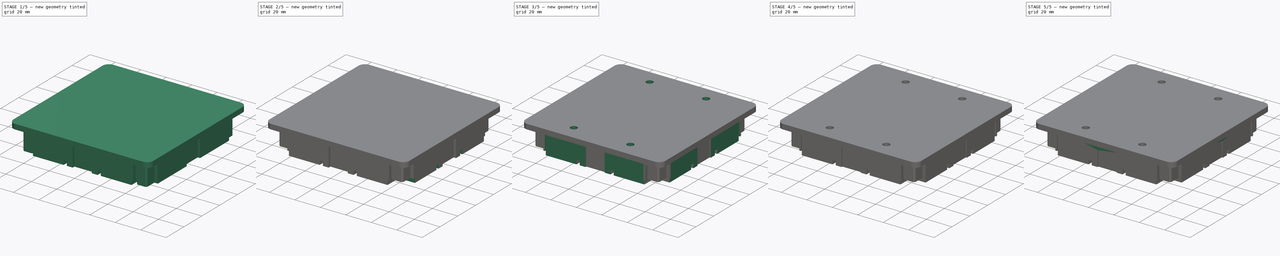
[diagram: build sequence overview — one tinted view per stage of 5, left to right]
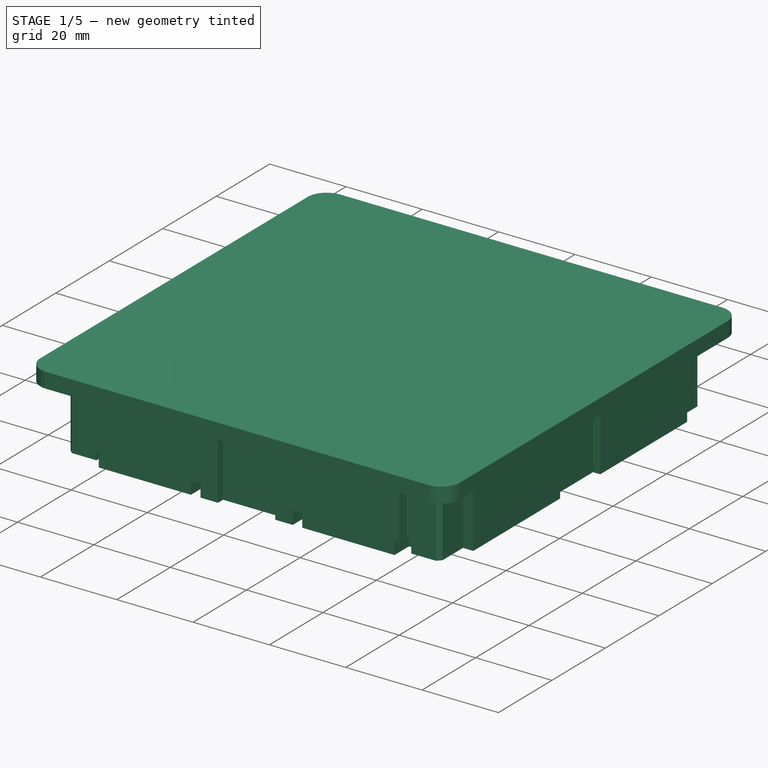
[diagram: stage 1 of 5 — iso view after this stage's code; geometry added in this stage tinted green]
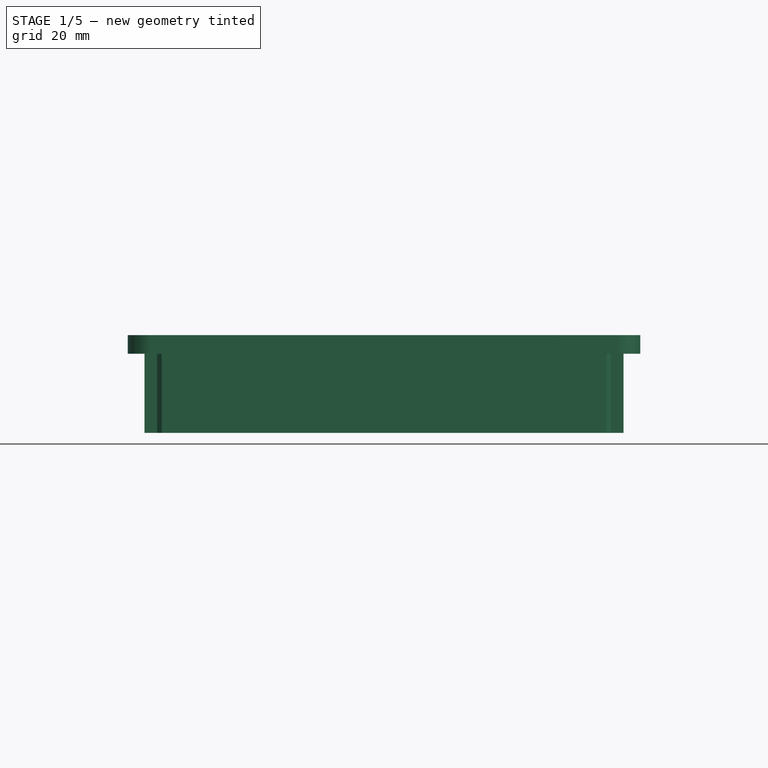
[diagram: stage 1 of 5 — front view after this stage's code; geometry added in this stage tinted green]
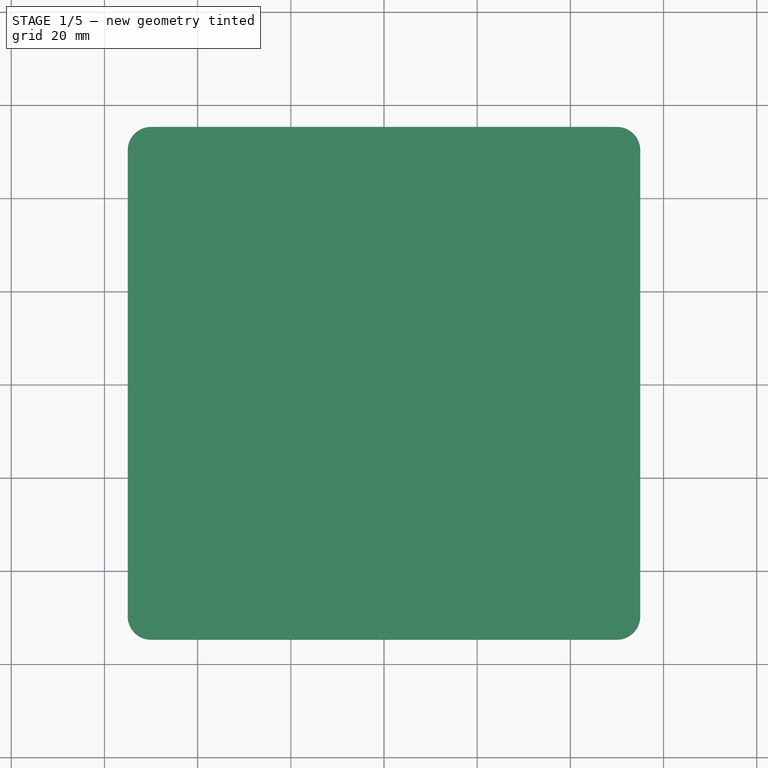
[diagram: stage 1 of 5 — top view after this stage's code; geometry added in this stage tinted green]
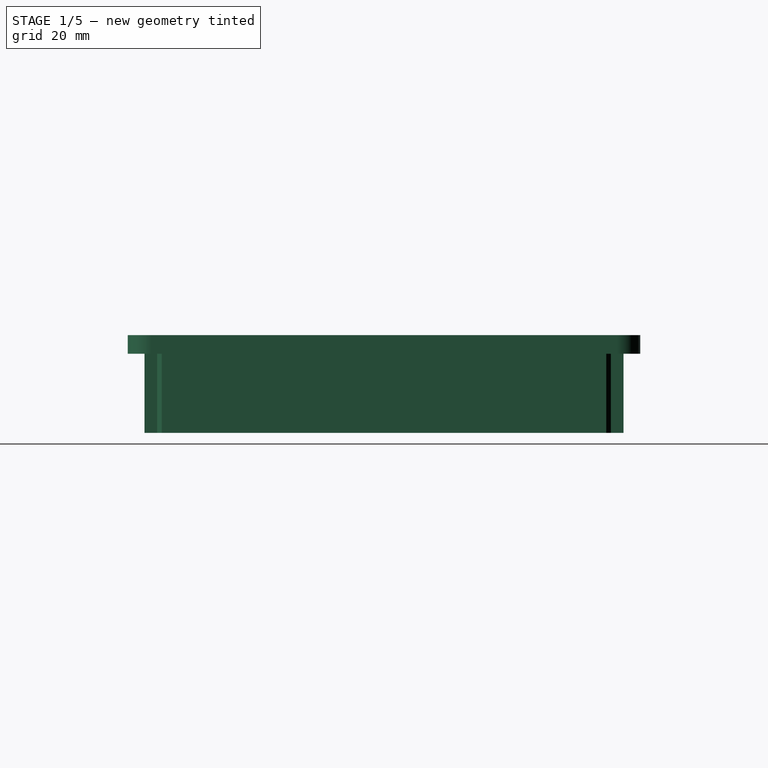
[diagram: stage 1 of 5 — right view after this stage's code; geometry added in this stage tinted green]
FCSTD DOCUMENT  (FreeCAD 0.18R15969 (Git))
Label: canvas_routing_template
License: All rights reserved
LicenseURL: http://en.wikipedia.org/wiki/All_rights_reserved
objects: Sketcher::SketchObject×7, PartDesign::Pad×6, PartDesign::Pocket×3, PartDesign::PolarPattern×3, PartDesign::Hole×2, PartDesign::Chamfer×2, PartDesign::Body×1
note: 35 computed .brp shape members not serialized (recipe doc carries the construction recipe); baked Part::Feature solids carry a one-line shape summary decoded from their .brp

FEATURE [Sketcher::SketchObject] Sketch
  MapMode = 5
  Support = -> [XY_Plane]
  sketch-geometry (11):
    g0: LineSegment StartX=-50 StartY=55 StartZ=0 EndX=50 EndY=55 EndZ=0
    g1: LineSegment StartX=55 StartY=50 StartZ=0 EndX=55 EndY=-50 EndZ=0
    g2: LineSegment StartX=50 StartY=-55 StartZ=0 EndX=-50 EndY=-55 EndZ=0
    g3: LineSegment StartX=-55 StartY=-50 StartZ=0 EndX=-55 EndY=50 EndZ=0
    g4: ArcOfCircle CenterX=-50 CenterY=50 CenterZ=0 NormalX=0 NormalY=0 NormalZ=1 AngleXU=0 Radius=5 StartAngle=1.5708 EndAngle=3.14159
    g5: ArcOfCircle CenterX=50 CenterY=50 CenterZ=0 NormalX=0 NormalY=0 NormalZ=1 AngleXU=0 Radius=5 StartAngle=2e-16 EndAngle=1.5708
    g6: ArcOfCircle CenterX=50 CenterY=-50 CenterZ=0 NormalX=0 NormalY=0 NormalZ=1 AngleXU=0 Radius=5 StartAngle=4.71239 EndAngle=6.28319
    g7: ArcOfCircle CenterX=-50 CenterY=-50 CenterZ=0 NormalX=0 NormalY=0 NormalZ=1 AngleXU=0 Radius=5 StartAngle=3.14159 EndAngle=4.71239
    g8: LineSegment [constr] StartX=-50 StartY=50 StartZ=0 EndX=0 EndY=0 EndZ=0
    g9: LineSegment [constr] StartX=0 StartY=0 StartZ=0 EndX=50 EndY=50 EndZ=0
    g10: LineSegment [constr] StartX=0 StartY=0 StartZ=0 EndX=-50 EndY=-50 EndZ=0
  constraints (26):
    c: Horizontal(g0)
    c: Horizontal(g2)
    c: Vertical(g1)
    c: Vertical(g3)
    c: Tangent(g3,g4) = 1.5708
    c: Tangent(g0,g4) = 1.5708
    c: Tangent(g0,g5) = 1.5708
    c: Tangent(g1,g5) = 1.5708
    c: Tangent(g1,g6) = 1.5708
    c: Tangent(g2,g6) = 1.5708
    c: Tangent(g2,g7) = 1.5708
    c: Tangent(g3,g7) = 1.5708
    c: Equal(g7,g4)
    c: Equal(g4,g5)
    c: Equal(g5,g6)
    c: Radius(g4) = 5
    c: DistanceX(g3,g1) = 110
    c: Equal(g3,g0)
    c: Coincident(g8,g4)
    c: Coincident(g8,g-1)
    c: Coincident(g8,g9)
    c: Coincident(g9,g5)
    c: Coincident(g-1,g10)
    c: Coincident(g10,g7)
    c: Equal(g9,g8)
    c: Equal(g8,g10)
FEATURE [PartDesign::Pad] Pad
  Length = 4
  Length2 = 100
  Profile = -> Sketch
  Type = 0
FEATURE [Sketcher::SketchObject] Sketch001
  MapMode = 5
  Placement = pos=(0,0,0) rot=(1,0,0;3.14159rad)
  Support = -> [Pad]
  expr: Constraints[79] = 48.7 * 2
  expr: Constraints[16] = 51.4 * 2
  sketch-geometry (51):
    g0: LineSegment [constr] StartX=-40 StartY=51.4 StartZ=0 EndX=40 EndY=51.4 EndZ=0
    g1: LineSegment [constr] StartX=51.4 StartY=40 StartZ=0 EndX=51.4 EndY=-40 EndZ=0
    g2: LineSegment [constr] StartX=40 StartY=-51.4 StartZ=0 EndX=-40 EndY=-51.4 EndZ=0
    g3: LineSegment [constr] StartX=-51.4 StartY=-40 StartZ=0 EndX=-51.4 EndY=40 EndZ=0
    g4: ArcOfCircle [constr] CenterX=-40 CenterY=40 CenterZ=0 NormalX=0 NormalY=0 NormalZ=1 AngleXU=0 Radius=11.4 StartAngle=1.5708 EndAngle=3.14159
    g5: ArcOfCircle [constr] CenterX=40 CenterY=40 CenterZ=0 NormalX=0 NormalY=0 NormalZ=1 AngleXU=0 Radius=11.4 StartAngle=0 EndAngle=1.5708
    g6: ArcOfCircle [constr] CenterX=40 CenterY=-40 CenterZ=0 NormalX=0 NormalY=0 NormalZ=1 AngleXU=0 Radius=11.4 StartAngle=4.71239 EndAngle=6.28319
    g7: ArcOfCircle [constr] CenterX=-40 CenterY=-40 CenterZ=0 NormalX=0 NormalY=0 NormalZ=1 AngleXU=0 Radius=11.4 StartAngle=3.14159 EndAngle=4.71239
    g8: LineSegment [constr] StartX=-40 StartY=40 StartZ=0 EndX=0 EndY=0 EndZ=0
    g9: LineSegment [constr] StartX=0 StartY=0 StartZ=0 EndX=40 EndY=40 EndZ=0
    g10: LineSegment [constr] StartX=0 StartY=0 StartZ=0 EndX=-40 EndY=-40 EndZ=0
    g11: LineSegment StartX=-51.4 StartY=40 StartZ=0 EndX=-48.7 EndY=40 EndZ=0
    g12: LineSegment StartX=-48.7 StartY=40 StartZ=0 EndX=-48.7 EndY=47.7 EndZ=0
    g13: LineSegment StartX=-48.7 StartY=47.7 StartZ=0 EndX=-47.7 EndY=48.7 EndZ=0
    g14: LineSegment StartX=-47.7 StartY=48.7 StartZ=0 EndX=-40 EndY=48.7 EndZ=0
    g15: LineSegment StartX=-40 StartY=48.7 StartZ=0 EndX=-40 EndY=51.4 EndZ=0
    g16: LineSegment StartX=40 StartY=51.4 StartZ=0 EndX=40 EndY=48.7 EndZ=0
    g17: LineSegment StartX=40 StartY=48.7 StartZ=0 EndX=47.7 EndY=48.7 EndZ=0
    g18: LineSegment StartX=47.7 StartY=48.7 StartZ=0 EndX=48.7 EndY=47.7 EndZ=0
    g19: LineSegment StartX=48.7 StartY=47.7 StartZ=0 EndX=48.7 EndY=40 EndZ=0
    g20: LineSegment StartX=48.7 StartY=40 StartZ=0 EndX=51.4 EndY=40 EndZ=0
    g21: LineSegment StartX=51.4 StartY=-40 StartZ=0 EndX=48.7 EndY=-40 EndZ=0
    g22: LineSegment StartX=48.7 StartY=-40 StartZ=0 EndX=48.7 EndY=-47.7 EndZ=0
    g23: LineSegment StartX=48.7 StartY=-47.7 StartZ=0 EndX=47.7 EndY=-48.7 EndZ=0
    g24: LineSegment StartX=47.7 StartY=-48.7 StartZ=0 EndX=40 EndY=-48.7 EndZ=0
    g25: LineSegment StartX=40 StartY=-48.7 StartZ=0 EndX=40 EndY=-51.4 EndZ=0
    g26: LineSegment StartX=-51.4 StartY=-40 StartZ=0 EndX=-48.7 EndY=-40 EndZ=0
    g27: LineSegment StartX=-48.7 StartY=-40 StartZ=0 EndX=-48.7 EndY=-47.7 EndZ=0
    g28: LineSegment StartX=-48.7 StartY=-47.7 StartZ=0 EndX=-47.7 EndY=-48.7 EndZ=0
    g29: LineSegment StartX=-47.7 StartY=-48.7 StartZ=0 EndX=-40 EndY=-48.7 EndZ=0
    g30: LineSegment StartX=-40 StartY=-48.7 StartZ=0 EndX=-40 EndY=-51.4 EndZ=0
    g31: LineSegment StartX=40 StartY=-51.4 StartZ=0 EndX=7.5 EndY=-51.4 EndZ=0
    g32: LineSegment StartX=7.5 StartY=-51.4 StartZ=0 EndX=7.5 EndY=-49.5 EndZ=0
    g33: LineSegment StartX=7.5 StartY=-49.5 StartZ=0 EndX=-7.5 EndY=-49.5 EndZ=0
    g34: LineSegment StartX=-7.5 StartY=-49.5 StartZ=0 EndX=-7.5 EndY=-51.4 EndZ=0
    g35: LineSegment StartX=-7.5 StartY=-51.4 StartZ=0 EndX=-40 EndY=-51.4 EndZ=0
    g36: LineSegment StartX=51.4 StartY=-40 StartZ=0 EndX=51.4 EndY=-7.5 EndZ=0
    g37: LineSegment StartX=51.4 StartY=-7.5 StartZ=0 EndX=49.5 EndY=-7.5 EndZ=0
    g38: LineSegment StartX=49.5 StartY=-7.5 StartZ=0 EndX=49.5 EndY=7.5 EndZ=0
    g39: LineSegment StartX=49.5 StartY=7.5 StartZ=0 EndX=51.4 EndY=7.5 EndZ=0
    g40: LineSegment StartX=51.4 StartY=7.5 StartZ=0 EndX=51.4 EndY=40 EndZ=0
    g41: LineSegment StartX=-51.4 StartY=-40 StartZ=0 EndX=-51.4 EndY=-7.5 EndZ=0
    g42: LineSegment StartX=-51.4 StartY=-7.5 StartZ=0 EndX=-49.5 EndY=-7.5 EndZ=0
    g43: LineSegment StartX=-49.5 StartY=-7.5 StartZ=0 EndX=-49.5 EndY=7.5 EndZ=0
    g44: LineSegment StartX=-49.5 StartY=7.5 StartZ=0 EndX=-51.4 EndY=7.5 EndZ=0
    g45: LineSegment StartX=-51.4 StartY=7.5 StartZ=0 EndX=-51.4 EndY=40 EndZ=0
    g46: LineSegment StartX=40 StartY=51.4 StartZ=0 EndX=7.5 EndY=51.4 EndZ=0
    g47: LineSegment StartX=7.5 StartY=51.4 StartZ=0 EndX=7.5 EndY=49.5 EndZ=0
    g48: LineSegment StartX=7.5 StartY=49.5 StartZ=0 EndX=-7.5 EndY=49.5 EndZ=0
    g49: LineSegment StartX=-7.5 StartY=49.5 StartZ=0 EndX=-7.5 EndY=51.4 EndZ=0
    g50: LineSegment StartX=-7.5 StartY=51.4 StartZ=0 EndX=-40 EndY=51.4 EndZ=0
  constraints (138):
    c: Horizontal(g0)
    c: Horizontal(g2)
    c: Vertical(g1)
    c: Vertical(g3)
    c: Tangent(g3,g4) = 1.5708
    c: Tangent(g0,g4) = 1.5708
    c: Tangent(g0,g5) = 1.5708
    c: Tangent(g1,g5) = 1.5708
    c: Tangent(g1,g6) = 1.5708
    c: Tangent(g2,g6) = 1.5708
    c: Tangent(g2,g7) = 1.5708
    c: Tangent(g3,g7) = 1.5708
    c: Equal(g7,g4)
    c: Equal(g4,g5)
    c: Equal(g5,g6)
    c: Equal(g0,g3)
    c: DistanceX(g3,g1) = 102.8
    c: Coincident(g8,g4)
    c: Coincident(g8,g-1)
    c: Coincident(g8,g9)
    c: Coincident(g9,g5)
    c: Coincident(g-1,g10)
    c: Coincident(g10,g7)
    c: Equal(g10,g8)
    c: Equal(g8,g9)
    c: Coincident(g3,g11)
    c: Horizontal(g11)
    c: Coincident(g11,g12)
    c: Vertical(g12)
    c: Coincident(g12,g13)
    c: Coincident(g13,g14)
    c: Horizontal(g14)
    c: Coincident(g14,g15)
    c: Coincident(g15,g0)
    c: Vertical(g15)
    c: Coincident(g16,g0)
    c: Vertical(g16)
    c: Coincident(g16,g17)
    c: Horizontal(g17)
    c: Coincident(g17,g18)
    c: Coincident(g18,g19)
    c: Vertical(g19)
    c: Coincident(g19,g20)
    c: Coincident(g20,g1)
    c: Horizontal(g20)
    c: Coincident(g1,g21)
    c: Horizontal(g21)
    c: Coincident(g21,g22)
    c: Coincident(g22,g23)
    c: Coincident(g23,g24)
    c: Horizontal(g24)
    c: Coincident(g24,g25)
    c: Coincident(g25,g2)
    c: Vertical(g25)
    c: Vertical(g22)
    c: Coincident(g3,g26)
    c: Horizontal(g26)
    c: Coincident(g26,g27)
    c: Vertical(g27)
    c: Coincident(g27,g28)
    c: Coincident(g28,g29)
    c: Horizontal(g29)
    c: Coincident(g29,g30)
    c: Coincident(g30,g2)
    c: Vertical(g30)
    c: Equal(g30,g26)
    c: Equal(g26,g11)
    c: Equal(g11,g15)
    c: Equal(g15,g16)
    c: Equal(g16,g20)
    c: Equal(g20,g21)
    c: Equal(g21,g25)
    c: Equal(g22,g24)
    c: Equal(g24,g29)
    c: Equal(g29,g27)
    c: Equal(g27,g12)
    c: Equal(g12,g14)
    c: Equal(g14,g17)
    c: Equal(g17,g19)
    c: DistanceX(g12,g18) = 97.4
    c: DistanceY(g12,g13) = 1
    c: DistanceX(g0,g0) = 80
    c: Coincident(g25,g31)
    c: PointOnObject(g31,g2)
    c: Coincident(g31,g32)
    c: Coincident(g32,g33)
    c: Horizontal(g33)
    c: Coincident(g33,g34)
    c: PointOnObject(g34,g2)
    c: Vertical(g34)
    c: Coincident(g34,g35)
    c: Coincident(g35,g30)
    c: Vertical(g32)
    c: Equal(g31,g35)
    c: DistanceX(g34,g31) = 15
    c: DistanceY(g32,g-1) = 49.5
    c: Coincident(g21,g36)
    c: PointOnObject(g36,g1)
    c: Coincident(g36,g37)
    c: Horizontal(g37)
    c: Coincident(g37,g38)
    c: Vertical(g38)
    c: Coincident(g38,g39)
    c: PointOnObject(g39,g1)
    c: Coincident(g39,g40)
    c: Coincident(g40,g20)
    c: Coincident(g26,g41)
    c: PointOnObject(g41,g3)
    c: Coincident(g41,g42)
    c: Horizontal(g42)
    c: Coincident(g42,g43)
    c: Vertical(g43)
    c: Coincident(g43,g44)
    c: Coincident(g44,g45)
    c: Coincident(g45,g11)
    c: Horizontal(g44)
    c: Equal(g44,g42)
    c: Equal(g42,g37)
    c: Equal(g37,g39)
    c: Equal(g39,g32)
    c: Equal(g36,g40)
    c: Equal(g41,g45)
    c: Equal(g33,g38)
    c: Equal(g38,g43)
    c: Coincident(g16,g46)
    c: PointOnObject(g46,g0)
    c: Coincident(g46,g47)
    c: Vertical(g47)
    c: Coincident(g47,g48)
    c: Horizontal(g48)
    c: Coincident(g48,g49)
    c: Vertical(g49)
    c: Coincident(g49,g50)
    c: Coincident(g50,g15)
    c: Equal(g49,g47)
    c: Equal(g48,g33)
    c: Equal(g47,g32)
    c: Equal(g46,g50)
FEATURE [PartDesign::Pad] Pad001
  BaseFeature = -> Pad
  Length = 17
  Length2 = 100
  Profile = -> Sketch001
  Type = 0
FEATURE [Sketcher::SketchObject] Sketch002
  MapMode = 5
  Placement = pos=(0,0,-17) rot=(1,0,0;3.14159rad)
  Support = -> [Pad001]
  sketch-geometry (49):
    g0: LineSegment [constr] StartX=-41.255 StartY=46 StartZ=0 EndX=-38.755 EndY=46 EndZ=0
    g1: LineSegment [constr] StartX=-38.755 StartY=46 StartZ=0 EndX=-38.755 EndY=-46 EndZ=0
    g2: LineSegment [constr] StartX=-38.755 StartY=-46 StartZ=0 EndX=-41.255 EndY=-46 EndZ=0
    g3: LineSegment [constr] StartX=-41.255 StartY=-46 StartZ=0 EndX=-41.255 EndY=46 EndZ=0
    g4: LineSegment [constr] StartX=-14.585 StartY=46 StartZ=0 EndX=-12.085 EndY=46 EndZ=0
    g5: LineSegment [constr] StartX=-12.085 StartY=46 StartZ=0 EndX=-12.085 EndY=-46 EndZ=0
    g6: LineSegment [constr] StartX=-12.085 StartY=-46 StartZ=0 EndX=-14.585 EndY=-46 EndZ=0
    g7: LineSegment [constr] StartX=-14.585 StartY=-46 StartZ=0 EndX=-14.585 EndY=46 EndZ=0
    g8: LineSegment [constr] StartX=12.085 StartY=46 StartZ=0 EndX=14.585 EndY=46 EndZ=0
    g9: LineSegment [constr] StartX=14.585 StartY=46 StartZ=0 EndX=14.585 EndY=-46 EndZ=0
    g10: LineSegment [constr] StartX=14.585 StartY=-46 StartZ=0 EndX=12.085 EndY=-46 EndZ=0
    g11: LineSegment [constr] StartX=12.085 StartY=-46 StartZ=0 EndX=12.085 EndY=46 EndZ=0
    g12: LineSegment [constr] StartX=38.755 StartY=46 StartZ=0 EndX=41.255 EndY=46 EndZ=0
    g13: LineSegment [constr] StartX=41.255 StartY=46 StartZ=0 EndX=41.255 EndY=-46 EndZ=0
    g14: LineSegment [constr] StartX=41.255 StartY=-46 StartZ=0 EndX=38.755 EndY=-46 EndZ=0
    g15: LineSegment [constr] StartX=38.755 StartY=-46 StartZ=0 EndX=38.755 EndY=46 EndZ=0
    g16: LineSegment [constr] StartX=-14.585 StartY=46 StartZ=0 EndX=-13.335 EndY=0 EndZ=0
    g17: LineSegment [constr] StartX=-12.085 StartY=46 StartZ=0 EndX=-13.335 EndY=0 EndZ=0
    g18: LineSegment [constr] StartX=12.085 StartY=46 StartZ=0 EndX=13.335 EndY=0 EndZ=0
    g19: LineSegment [constr] StartX=14.585 StartY=46 StartZ=0 EndX=13.335 EndY=0 EndZ=0
    g20: LineSegment [constr] StartX=38.755 StartY=46 StartZ=0 EndX=40.005 EndY=0 EndZ=0
    g21: LineSegment [constr] StartX=41.255 StartY=46 StartZ=0 EndX=40.005 EndY=0 EndZ=0
    g22: LineSegment [constr] StartX=-41.255 StartY=46 StartZ=0 EndX=-40.005 EndY=0 EndZ=0
    g23: LineSegment [constr] StartX=-38.755 StartY=46 StartZ=0 EndX=-40.005 EndY=0 EndZ=0
    g24: LineSegment [constr] StartX=-40.005 StartY=0 StartZ=0 EndX=-41.255 EndY=-46 EndZ=0
    g25: LineSegment [constr] StartX=-13.335 StartY=0 StartZ=0 EndX=-14.585 EndY=-46 EndZ=0
    g26: LineSegment [constr] StartX=13.335 StartY=0 StartZ=0 EndX=12.085 EndY=-46 EndZ=0
    g27: LineSegment [constr] StartX=40.005 StartY=0 StartZ=0 EndX=38.755 EndY=-46 EndZ=0
    g28: LineSegment [constr] StartX=-40.005 StartY=0 StartZ=0 EndX=-13.335 EndY=0 EndZ=0
    g29: LineSegment [constr] StartX=-13.335 StartY=0 StartZ=0 EndX=13.335 EndY=0 EndZ=0
    g30: LineSegment [constr] StartX=13.335 StartY=0 StartZ=0 EndX=40.005 EndY=0 EndZ=0
    g31: LineSegment [constr] StartX=-12.085 StartY=46 StartZ=0 EndX=0 EndY=0 EndZ=0
    g32: LineSegment [constr] StartX=0 StartY=0 StartZ=0 EndX=12.085 EndY=46 EndZ=0
    g33: LineSegment StartX=-41.255 StartY=46 StartZ=0 EndX=-38.755 EndY=46 EndZ=0
    g34: LineSegment StartX=-38.755 StartY=46 StartZ=0 EndX=-38.755 EndY=66 EndZ=0
    g35: LineSegment StartX=-38.755 StartY=66 StartZ=0 EndX=-41.255 EndY=66 EndZ=0
    g36: LineSegment StartX=-41.255 StartY=66 StartZ=0 EndX=-41.255 EndY=46 EndZ=0
    g37: LineSegment StartX=-14.585 StartY=46 StartZ=0 EndX=-12.085 EndY=46 EndZ=0
    g38: LineSegment StartX=-12.085 StartY=46 StartZ=0 EndX=-12.085 EndY=66 EndZ=0
    g39: LineSegment StartX=-12.085 StartY=66 StartZ=0 EndX=-14.585 EndY=66 EndZ=0
    g40: LineSegment StartX=-14.585 StartY=66 StartZ=0 EndX=-14.585 EndY=46 EndZ=0
    g41: LineSegment StartX=12.085 StartY=46 StartZ=0 EndX=14.585 EndY=46 EndZ=0
    g42: LineSegment StartX=14.585 StartY=46 StartZ=0 EndX=14.585 EndY=66 EndZ=0
    g43: LineSegment StartX=14.585 StartY=66 StartZ=0 EndX=12.085 EndY=66 EndZ=0
    g44: LineSegment StartX=12.085 StartY=66 StartZ=0 EndX=12.085 EndY=46 EndZ=0
    g45: LineSegment StartX=38.755 StartY=46 StartZ=0 EndX=41.255 EndY=46 EndZ=0
    g46: LineSegment StartX=41.255 StartY=46 StartZ=0 EndX=41.255 EndY=66 EndZ=0
    g47: LineSegment StartX=41.255 StartY=66 StartZ=0 EndX=38.755 EndY=66 EndZ=0
    g48: LineSegment StartX=38.755 StartY=66 StartZ=0 EndX=38.755 EndY=46 EndZ=0
  constraints (126):
    c: Coincident(g0,g1)
    c: Coincident(g1,g2)
    c: Coincident(g2,g3)
    c: Coincident(g3,g0)
    c: Horizontal(g0)
    c: Horizontal(g2)
    c: Vertical(g1)
    c: Vertical(g3)
    c: Coincident(g4,g5)
    c: Coincident(g5,g6)
    c: Coincident(g6,g7)
    c: Coincident(g7,g4)
    c: Horizontal(g4)
    c: Horizontal(g6)
    c: Vertical(g5)
    c: Vertical(g7)
    c: Coincident(g8,g9)
    c: Coincident(g9,g10)
    c: Coincident(g10,g11)
    c: Coincident(g11,g8)
    c: Horizontal(g8)
    c: Horizontal(g10)
    c: Vertical(g9)
    c: Vertical(g11)
    c: Coincident(g12,g13)
    c: Coincident(g13,g14)
    c: Coincident(g14,g15)
    c: Coincident(g15,g12)
    c: Horizontal(g12)
    c: Horizontal(g14)
    c: Vertical(g13)
    c: Vertical(g15)
    c: Equal(g0,g4)
    c: Equal(g4,g8)
    c: Equal(g8,g12)
    c: Equal(g1,g5)
    c: Equal(g5,g9)
    c: Equal(g9,g13)
    c: Coincident(g16,g4)
    c: PointOnObject(g16,g-1)
    c: Coincident(g17,g4)
    c: Coincident(g17,g16)
    c: Coincident(g18,g8)
    c: PointOnObject(g18,g-1)
    c: Coincident(g19,g8)
    c: Coincident(g19,g18)
    c: Coincident(g20,g12)
    c: PointOnObject(g20,g-1)
    c: Coincident(g21,g12)
    c: Coincident(g21,g20)
    c: Coincident(g22,g0)
    c: PointOnObject(g22,g-1)
    c: Coincident(g23,g0)
    c: Coincident(g23,g22)
    c: Coincident(g24,g22)
    c: Coincident(g24,g2)
    c: Coincident(g25,g16)
    c: Coincident(g25,g6)
    c: Coincident(g26,g18)
    c: Coincident(g27,g20)
    c: Coincident(g27,g14)
    c: Equal(g27,g20)
    c: Equal(g20,g21)
    c: Equal(g26,g18)
    c: Equal(g18,g19)
    c: Coincident(g26,g10)
    c: Equal(g25,g16)
    c: Equal(g16,g17)
    c: Equal(g22,g23)
    c: Equal(g23,g24)
    c: Coincident(g28,g22)
    c: Coincident(g28,g16)
    c: Coincident(g29,g16)
    c: Coincident(g29,g18)
    c: Coincident(g30,g18)
    c: Coincident(g30,g20)
    c: Equal(g30,g29)
    c: Equal(g29,g28)
    c: DistanceX(g29,g29) = 26.67
    c: DistanceX(g0,g0) = 2.5
    c: Coincident(g4,g31)
    c: Coincident(g31,g-1)
    c: Coincident(g31,g32)
    c: Coincident(g32,g8)
    c: Equal(g32,g31)
    c: DistanceY(g7,g7) = 92
    c: Coincident(g33,g34)
    c: Coincident(g34,g35)
    c: Coincident(g35,g36)
    c: Coincident(g36,g33)
    c: Horizontal(g35)
    c: Vertical(g34)
    c: Vertical(g36)
    c: Coincident(g33,g0)
    c: Coincident(g33,g0)
    c: Coincident(g37,g38)
    c: Coincident(g38,g39)
    c: Coincident(g39,g40)
    c: Coincident(g40,g37)
    c: Horizontal(g39)
    c: Vertical(g38)
    c: Vertical(g40)
    c: Coincident(g37,g4)
    c: Coincident(g4,g37)
    c: Coincident(g41,g42)
    c: Coincident(g42,g43)
    c: Coincident(g43,g44)
    c: Coincident(g44,g41)
    c: Horizontal(g43)
    c: Vertical(g42)
    c: Vertical(g44)
    c: Coincident(g41,g8)
    c: Coincident(g41,g8)
    c: Coincident(g45,g46)
    c: Coincident(g46,g47)
    c: Coincident(g47,g48)
    c: Coincident(g48,g45)
    c: Horizontal(g47)
    c: Vertical(g46)
    c: Vertical(g48)
    c: Coincident(g45,g12)
    c: Coincident(g45,g12)
    c: Equal(g48,g44)
    c: Equal(g44,g40)
    c: Equal(g40,g36)
    c: DistanceY(g36,g36) = 20
FEATURE [PartDesign::Pocket] Pocket
  BaseFeature = -> Pad001
  Length = 3.4
  Length2 = 100
  Profile = -> Sketch002
  Type = 0
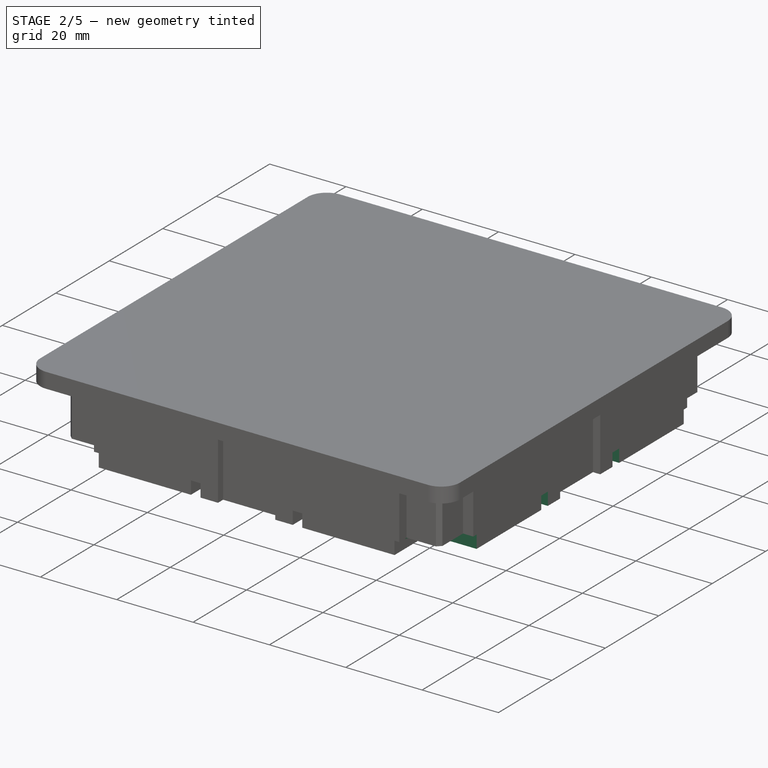
[diagram: stage 2 of 5 — iso view after this stage's code; geometry added in this stage tinted green]
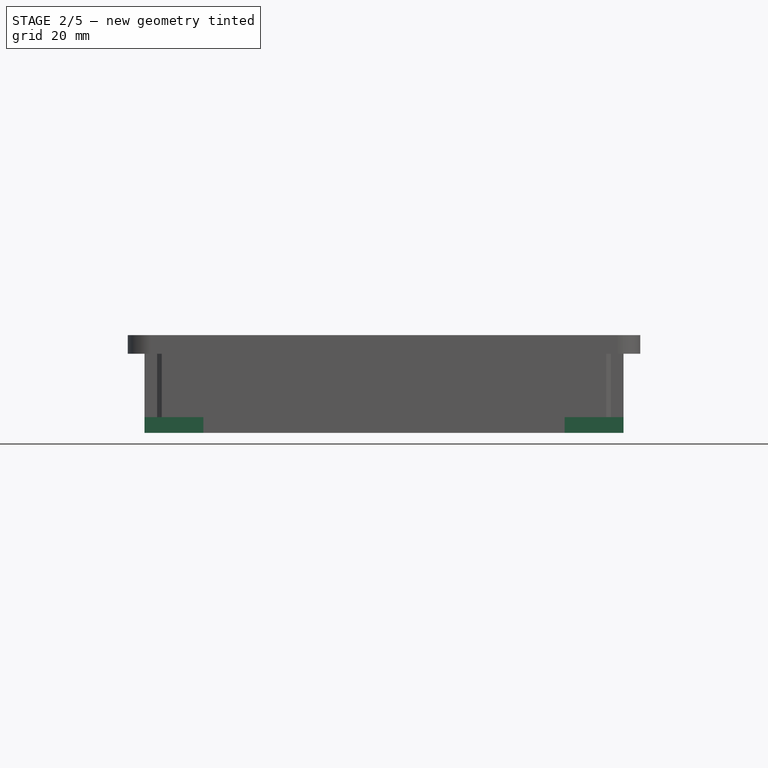
[diagram: stage 2 of 5 — front view after this stage's code; geometry added in this stage tinted green]
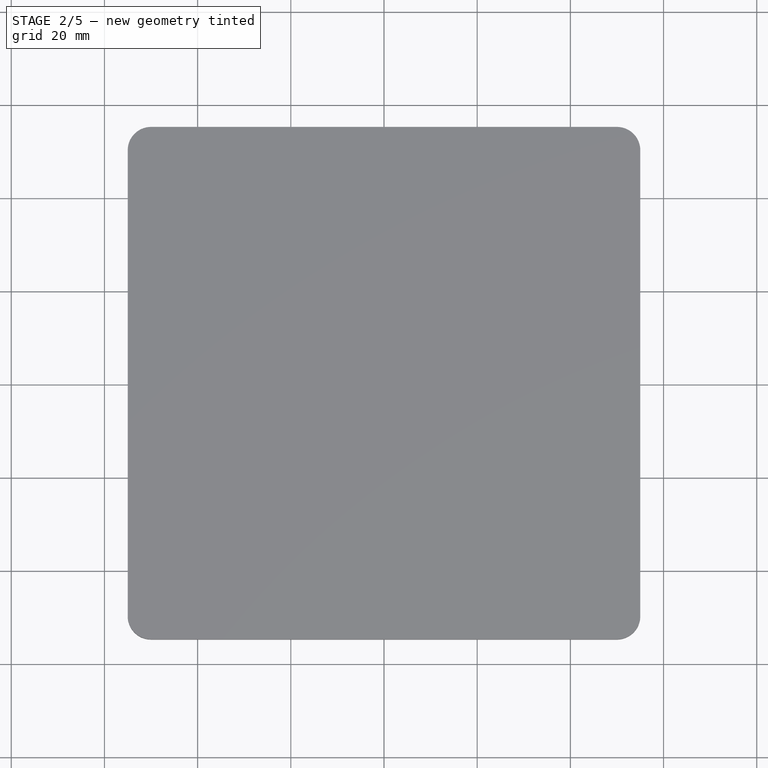
[diagram: stage 2 of 5 — top view after this stage's code; geometry added in this stage tinted green]
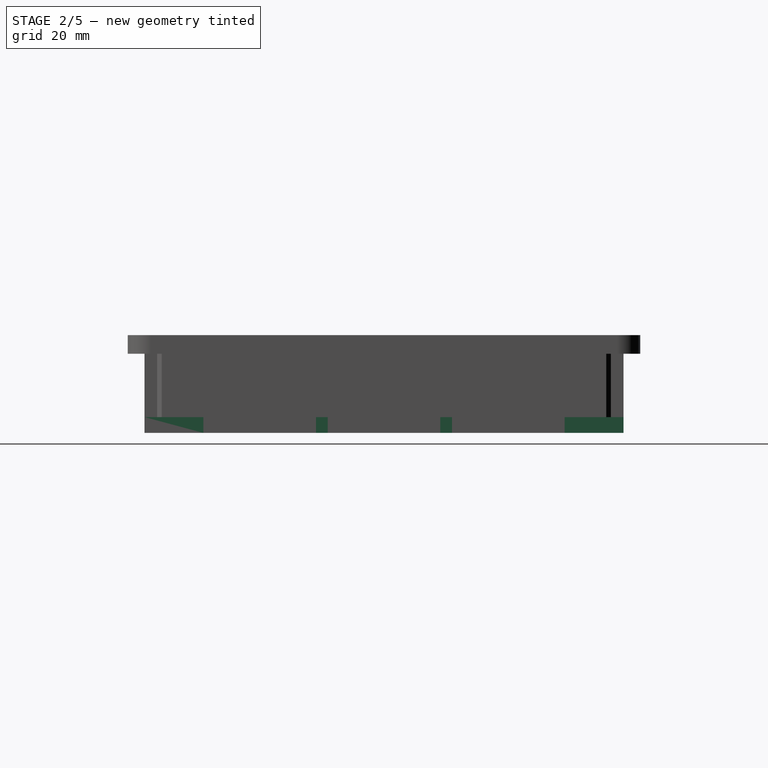
[diagram: stage 2 of 5 — right view after this stage's code; geometry added in this stage tinted green]
FEATURE [PartDesign::PolarPattern] PolarPattern
  Angle = 360
  Axis = -> Z_Axis
  BaseFeature = -> Pocket
  Occurrences = 4
  Originals = -> [Pocket]
FEATURE [Sketcher::SketchObject] Sketch003
  ExternalGeometry = -> [PolarPattern]
  MapMode = 5
  Placement = pos=(0,0,-17) rot=(1,0,0;3.14159rad)
  Support = -> [PolarPattern]
  sketch-geometry (9):
    g0: LineSegment StartX=-83.3973 StartY=83.3973 StartZ=0 EndX=-38.755 EndY=83.3973 EndZ=0
    g1: LineSegment StartX=-38.755 StartY=83.3973 StartZ=0 EndX=-38.755 EndY=38.755 EndZ=0
    g2: LineSegment StartX=-38.755 StartY=38.755 StartZ=0 EndX=-83.3973 EndY=38.755 EndZ=0
    g3: LineSegment StartX=-83.3973 StartY=38.755 StartZ=0 EndX=-83.3973 EndY=83.3973 EndZ=0
    g4: LineSegment [constr] StartX=-83.3973 StartY=38.755 StartZ=0 EndX=0 EndY=0 EndZ=0
    g5: LineSegment [constr] StartX=-38.755 StartY=83.3973 StartZ=0 EndX=0 EndY=0 EndZ=0
    g6: Circle CenterX=-26.67 CenterY=26.67 CenterZ=0 NormalX=0 NormalY=0 NormalZ=1 AngleXU=0 Radius=5
    g7: LineSegment [constr] StartX=-26.67 StartY=26.67 StartZ=0 EndX=-26.67 EndY=0 EndZ=0
    g8: LineSegment [constr] StartX=-26.67 StartY=26.67 StartZ=0 EndX=0 EndY=26.67 EndZ=0
  constraints (24):
    c: Coincident(g0,g1)
    c: Coincident(g1,g2)
    c: Coincident(g2,g3)
    c: Coincident(g3,g0)
    c: Horizontal(g0)
    c: Horizontal(g2)
    c: Vertical(g1)
    c: Vertical(g3)
    c: Equal(g1,g2)
    c: Coincident(g4,g2)
    c: Coincident(g4,g-1)
    c: Coincident(g5,g0)
    c: Coincident(g5,g-1)
    c: Equal(g4,g5)
    c: PointOnObject(g-3,g2)
    c: Coincident(g7,g6)
    c: PointOnObject(g7,g-1)
    c: Vertical(g7)
    c: Coincident(g8,g6)
    c: PointOnObject(g8,g-2)
    c: Horizontal(g8)
    c: Equal(g8,g7)
    c: DistanceX(g6,g-1) = 26.67
    c: Diameter(g6) = 10
FEATURE [PartDesign::Pocket] Pocket001
  BaseFeature = -> PolarPattern
  Length = 3.4
  Length2 = 100
  Profile = -> Sketch003
  Refine = true
  Type = 0
FEATURE [PartDesign::PolarPattern] PolarPattern001
  Angle = 360
  Axis = -> Z_Axis
  BaseFeature = -> Pocket001
  Occurrences = 4
  Originals = -> [Pocket001]
  Refine = true
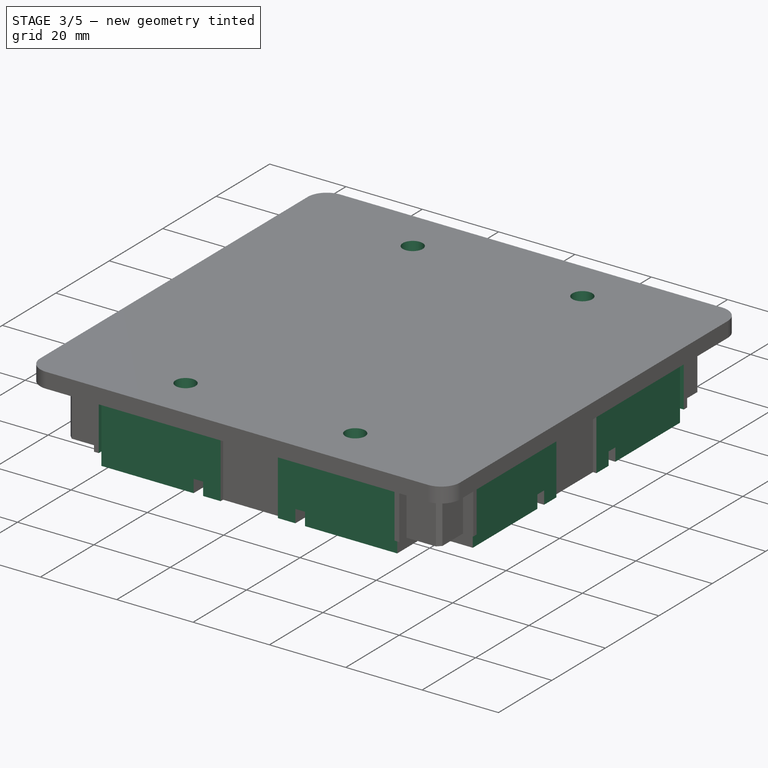
[diagram: stage 3 of 5 — iso view after this stage's code; geometry added in this stage tinted green]
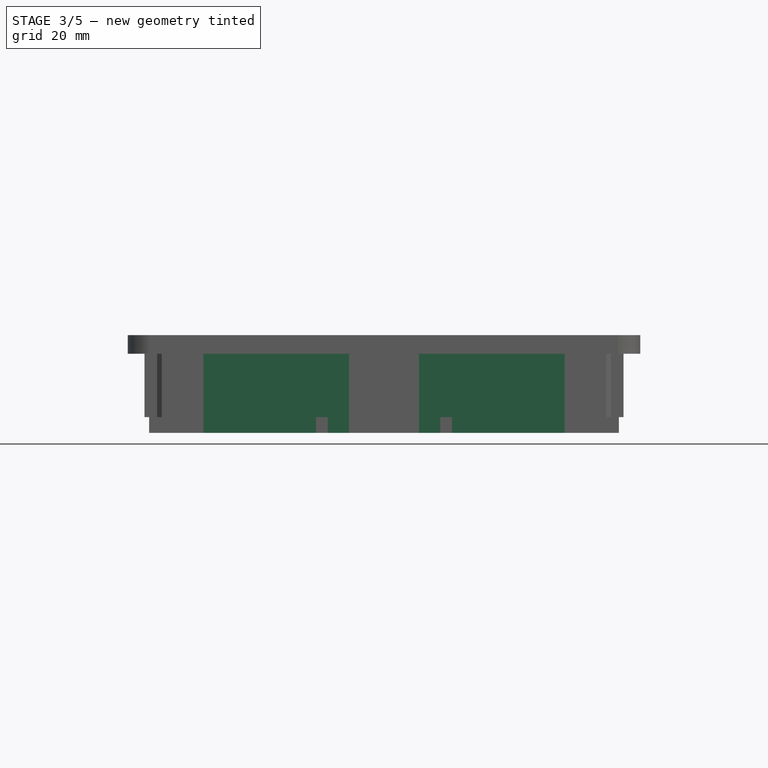
[diagram: stage 3 of 5 — front view after this stage's code; geometry added in this stage tinted green]
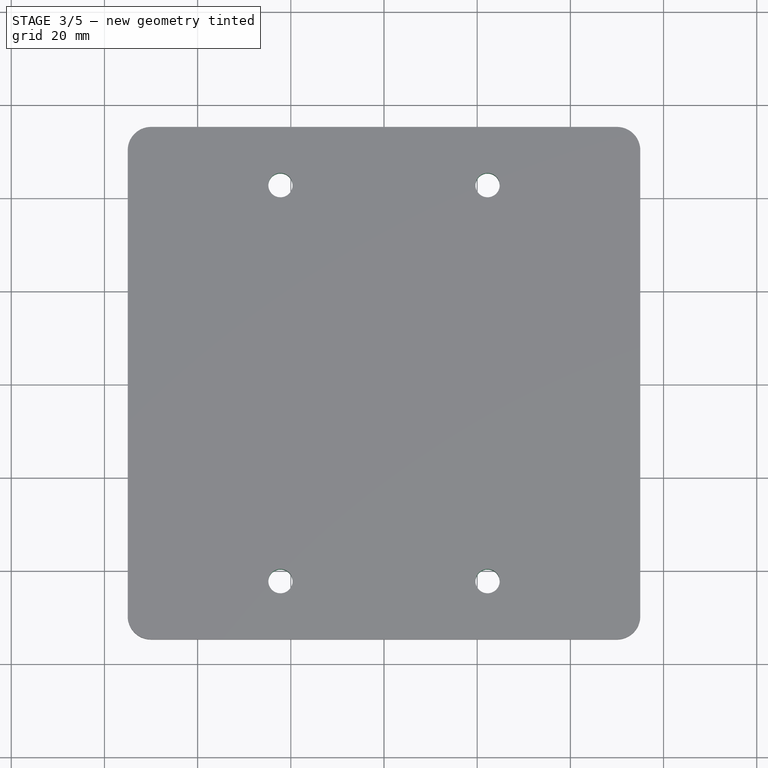
[diagram: stage 3 of 5 — top view after this stage's code; geometry added in this stage tinted green]
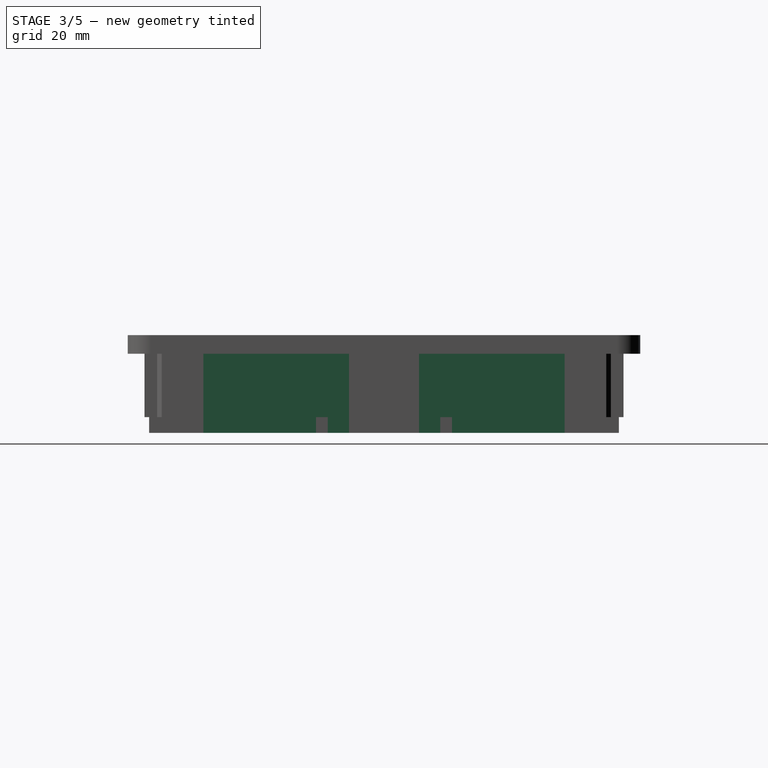
[diagram: stage 3 of 5 — right view after this stage's code; geometry added in this stage tinted green]
FEATURE [Sketcher::SketchObject] Sketch004
  MapMode = 5
  Placement = pos=(0,0,-17) rot=(1,0,0;3.14159rad)
  Support = -> [PolarPattern001]
  sketch-geometry (11):
    g0: LineSegment [constr] StartX=-22.225 StartY=42.5 StartZ=0 EndX=22.225 EndY=42.5 EndZ=0
    g1: LineSegment [constr] StartX=22.225 StartY=42.5 StartZ=0 EndX=22.225 EndY=-42.5 EndZ=0
    g2: LineSegment [constr] StartX=22.225 StartY=-42.5 StartZ=0 EndX=-22.225 EndY=-42.5 EndZ=0
    g3: LineSegment [constr] StartX=-22.225 StartY=-42.5 StartZ=0 EndX=-22.225 EndY=42.5 EndZ=0
    g4: LineSegment [constr] StartX=-22.225 StartY=42.5 StartZ=0 EndX=0 EndY=0 EndZ=0
    g5: LineSegment [constr] StartX=0 StartY=0 StartZ=0 EndX=22.225 EndY=42.5 EndZ=0
    g6: LineSegment [constr] StartX=0 StartY=0 StartZ=0 EndX=-22.225 EndY=-42.5 EndZ=0
    g7: Circle CenterX=-22.225 CenterY=42.5 CenterZ=0 NormalX=0 NormalY=0 NormalZ=1 AngleXU=0 Radius=5
    g8: Circle CenterX=22.225 CenterY=42.5 CenterZ=0 NormalX=0 NormalY=0 NormalZ=1 AngleXU=0 Radius=5
    g9: Circle CenterX=22.225 CenterY=-42.5 CenterZ=0 NormalX=0 NormalY=0 NormalZ=1 AngleXU=0 Radius=5
    g10: Circle CenterX=-22.225 CenterY=-42.5 CenterZ=0 NormalX=0 NormalY=0 NormalZ=1 AngleXU=0 Radius=5
  constraints (26):
    c: Coincident(g0,g1)
    c: Coincident(g1,g2)
    c: Coincident(g2,g3)
    c: Coincident(g3,g0)
    c: Horizontal(g0)
    c: Horizontal(g2)
    c: Vertical(g1)
    c: Vertical(g3)
    c: Coincident(g0,g4)
    c: Coincident(g4,g-1)
    c: Coincident(g4,g5)
    c: Coincident(g5,g0)
    c: Coincident(g-1,g6)
    c: Coincident(g6,g2)
    c: Equal(g6,g4)
    c: Equal(g4,g5)
    c: Coincident(g7,g0)
    c: Coincident(g8,g0)
    c: Coincident(g9,g1)
    c: Coincident(g10,g2)
    c: DistanceX(g0,g0) = 44.45
    c: Diameter(g7) = 10
    c: Equal(g7,g8)
    c: Equal(g7,g9)
    c: Equal(g7,g10)
    c: DistanceY(g3,g3) = 85
FEATURE [PartDesign::Hole] Hole
  BaseFeature = -> PolarPattern001
  Depth = 25
  DepthType = 1
  Diameter = 5.2
  DrillPoint = 1
  DrillPointAngle = 118
  HoleCutCountersinkAngle = 90
  HoleCutDepth = 13
  HoleCutDiameter = 10
  HoleCutType = 1
  ModelActualThread = false
  Profile = -> Sketch004
  Tapered = false
  TaperedAngle = 90
  ThreadAngle = 0
  ThreadClass = 0
  ThreadCutOffInner = 0
  ThreadCutOffOuter = 0
  ThreadDirection = 0
  ThreadFit = 0
  ThreadPitch = 0
  ThreadSize = 0
  ThreadType = 0
  Threaded = false
FEATURE [Sketcher::SketchObject] Sketch005
  ExternalGeometry = -> [Hole]
  MapMode = 5
  Placement = pos=(0,0,-17) rot=(1,0,0;3.14159rad)
  Support = -> [Hole]
  sketch-geometry (4):
    g0: LineSegment StartX=-38.755 StartY=51.4 StartZ=0 EndX=38.755 EndY=51.4 EndZ=0
    g1: LineSegment StartX=38.755 StartY=51.4 StartZ=0 EndX=38.755 EndY=50.4 EndZ=0
    g2: LineSegment StartX=38.755 StartY=50.4 StartZ=0 EndX=-38.755 EndY=50.4 EndZ=0
    g3: LineSegment StartX=-38.755 StartY=50.4 StartZ=0 EndX=-38.755 EndY=51.4 EndZ=0
  constraints (10):
    c: Coincident(g0,g1)
    c: Coincident(g1,g2)
    c: Coincident(g2,g3)
    c: Coincident(g3,g0)
    c: Horizontal(g2)
    c: Vertical(g1)
    c: Vertical(g3)
    c: Coincident(g0,g-3)
    c: Coincident(g0,g-4)
    c: DistanceY(g1,g1) = 1
FEATURE [PartDesign::Pocket] Pocket002
  BaseFeature = -> Hole
  Length = 19
  Length2 = 100
  Profile = -> Sketch005
  Type = 0
FEATURE [PartDesign::PolarPattern] PolarPattern002
  Angle = 360
  Axis = -> Z_Axis
  BaseFeature = -> Pocket002
  Occurrences = 4
  Originals = -> [Pocket002]
  Refine = true
FEATURE [PartDesign::Chamfer] Chamfer
  Base = -> PolarPattern002 [Edge33,Edge43,Edge53,Edge23]
  BaseFeature = -> PolarPattern002
  Size = 1
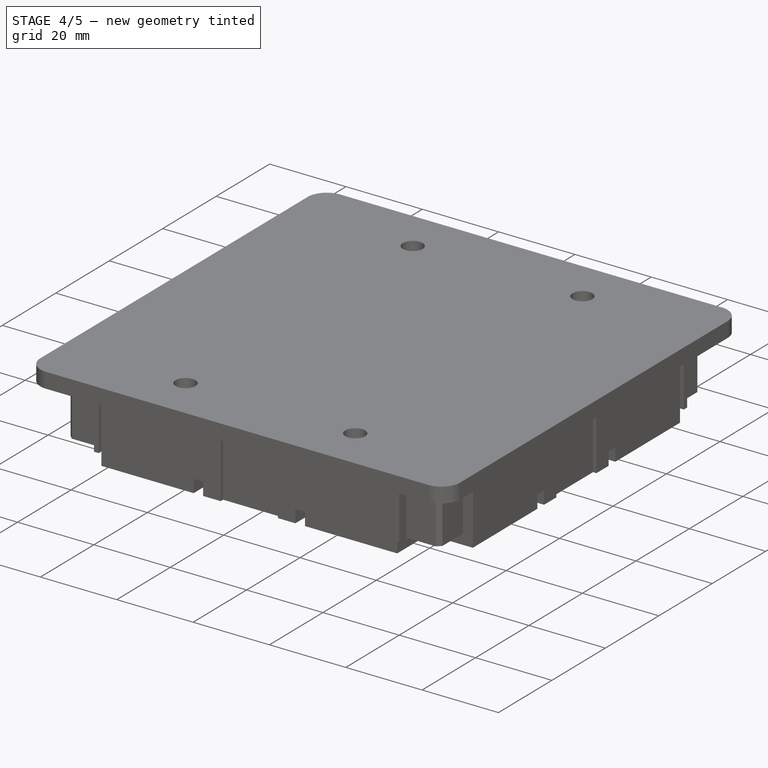
[diagram: stage 4 of 5 — iso view after this stage's code; geometry added in this stage tinted green]
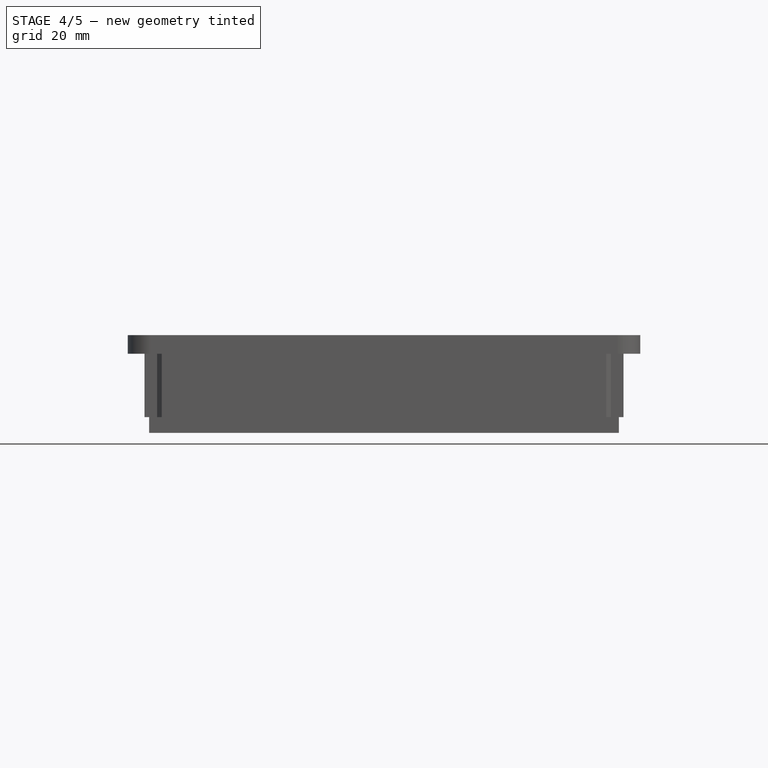
[diagram: stage 4 of 5 — front view after this stage's code; geometry added in this stage tinted green]
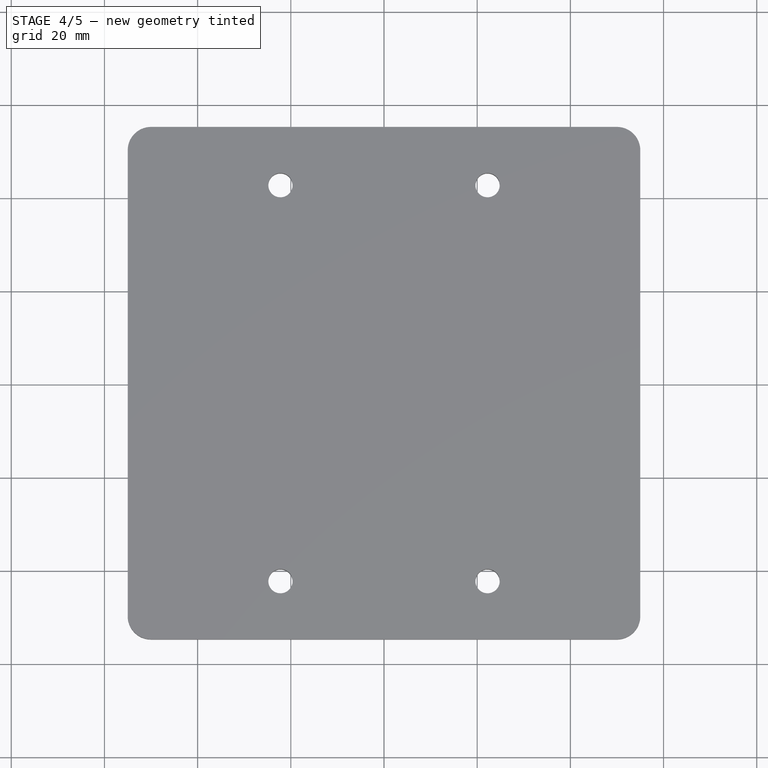
[diagram: stage 4 of 5 — top view after this stage's code; geometry added in this stage tinted green]
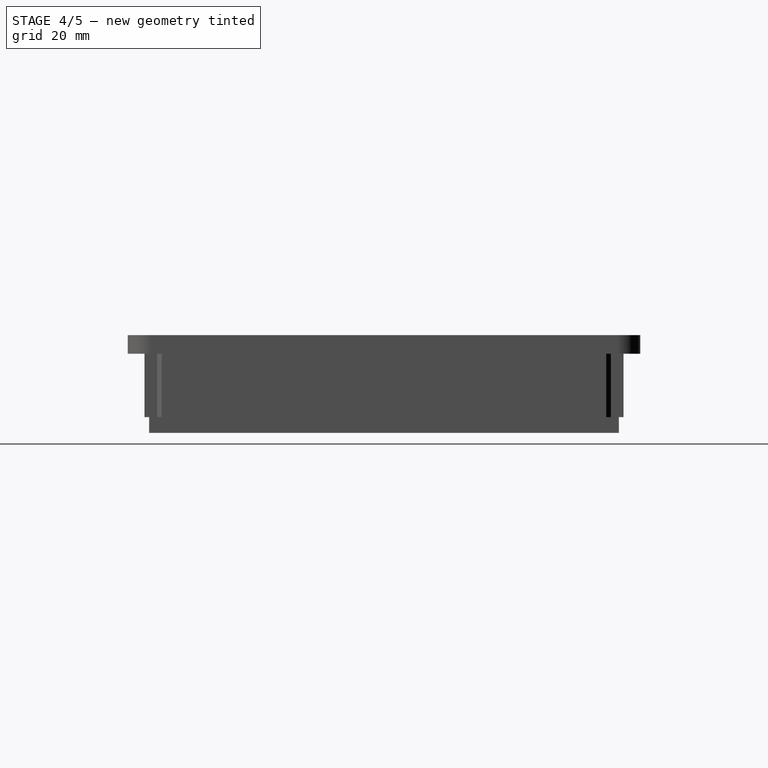
[diagram: stage 4 of 5 — right view after this stage's code; geometry added in this stage tinted green]
FEATURE [Sketcher::SketchObject] Sketch006
  MapMode = 5
  Placement = pos=(0,0,-17) rot=(1,0,0;3.14159rad)
  Support = -> [Chamfer]
  sketch-geometry (12):
    g0: LineSegment [constr] StartX=-44 StartY=44 StartZ=0 EndX=44 EndY=44 EndZ=0
    g1: LineSegment [constr] StartX=44 StartY=44 StartZ=0 EndX=44 EndY=-44 EndZ=0
    g2: LineSegment [constr] StartX=44 StartY=-44 StartZ=0 EndX=-44 EndY=-44 EndZ=0
    g3: LineSegment [constr] StartX=-44 StartY=-44 StartZ=0 EndX=-44 EndY=44 EndZ=0
    g4: LineSegment [constr] StartX=-44 StartY=44 StartZ=0 EndX=0 EndY=0 EndZ=0
    g5: LineSegment [constr] StartX=0 StartY=0 StartZ=0 EndX=44 EndY=44 EndZ=0
    g6: LineSegment [constr] StartX=0 StartY=0 StartZ=0 EndX=-44 EndY=-44 EndZ=0
    g7: Circle CenterX=-44 CenterY=44 CenterZ=0 NormalX=0 NormalY=0 NormalZ=1 AngleXU=0 Radius=5
    g8: Circle CenterX=44 CenterY=44 CenterZ=0 NormalX=0 NormalY=0 NormalZ=1 AngleXU=0 Radius=5
    g9: Circle CenterX=44 CenterY=-44 CenterZ=0 NormalX=0 NormalY=0 NormalZ=1 AngleXU=0 Radius=5
    g10: Circle CenterX=-44 CenterY=-44 CenterZ=0 NormalX=0 NormalY=0 NormalZ=1 AngleXU=0 Radius=5
    g11: Circle CenterX=0 CenterY=0 CenterZ=0 NormalX=0 NormalY=0 NormalZ=1 AngleXU=0 Radius=5
  constraints (28):
    c: Coincident(g0,g1)
    c: Coincident(g1,g2)
    c: Coincident(g2,g3)
    c: Coincident(g3,g0)
    c: Horizontal(g0)
    c: Horizontal(g2)
    c: Vertical(g1)
    c: Vertical(g3)
    c: Coincident(g0,g4)
    c: Coincident(g4,g-1)
    c: Coincident(g4,g5)
    c: Coincident(g5,g0)
    c: Coincident(g-1,g6)
    c: Coincident(g6,g2)
    c: Equal(g6,g4)
    c: Equal(g4,g5)
    c: Equal(g0,g3)
    c: DistanceX(g0,g0) = 88
    c: Coincident(g7,g0)
    c: Coincident(g8,g0)
    c: Coincident(g9,g1)
    c: Coincident(g10,g2)
    c: Diameter(g7) = 10
    c: Equal(g7,g8)
    c: Equal(g7,g9)
    c: Equal(g7,g10)
    c: Coincident(g11,g-1)
    c: Equal(g11,g8)
FEATURE [PartDesign::Hole] Hole001
  BaseFeature = -> Chamfer
  Depth = 15
  DepthType = 0
  Diameter = 3.1
  DrillPoint = 1
  DrillPointAngle = 118
  HoleCutCountersinkAngle = 90
  HoleCutDepth = 0
  HoleCutDiameter = 0
  HoleCutType = 0
  ModelActualThread = false
  Profile = -> Sketch006
  Tapered = false
  TaperedAngle = 90
  ThreadAngle = 0
  ThreadClass = 0
  ThreadCutOffInner = 0
  ThreadCutOffOuter = 0
  ThreadDirection = 0
  ThreadFit = 0
  ThreadPitch = 0
  ThreadSize = 0
  ThreadType = 0
  Threaded = false
FEATURE [PartDesign::Chamfer] Chamfer001
  Base = -> Hole001 [Edge323,Edge255,Edge235,Edge215,Edge212]
  BaseFeature = -> Hole001
  Size = 1
FEATURE [PartDesign::Pad] Pad002
  BaseFeature = -> Chamfer001
  Length = 5
  Length2 = 100
  Profile = -> Chamfer001 [Face140]
  Type = 0
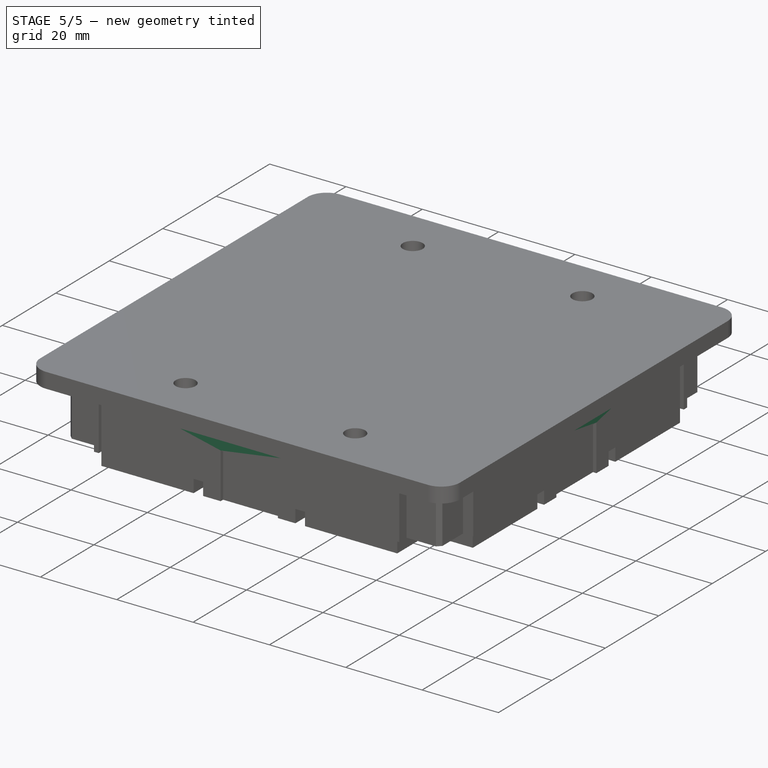
[diagram: stage 5 of 5 — iso view after this stage's code; geometry added in this stage tinted green]
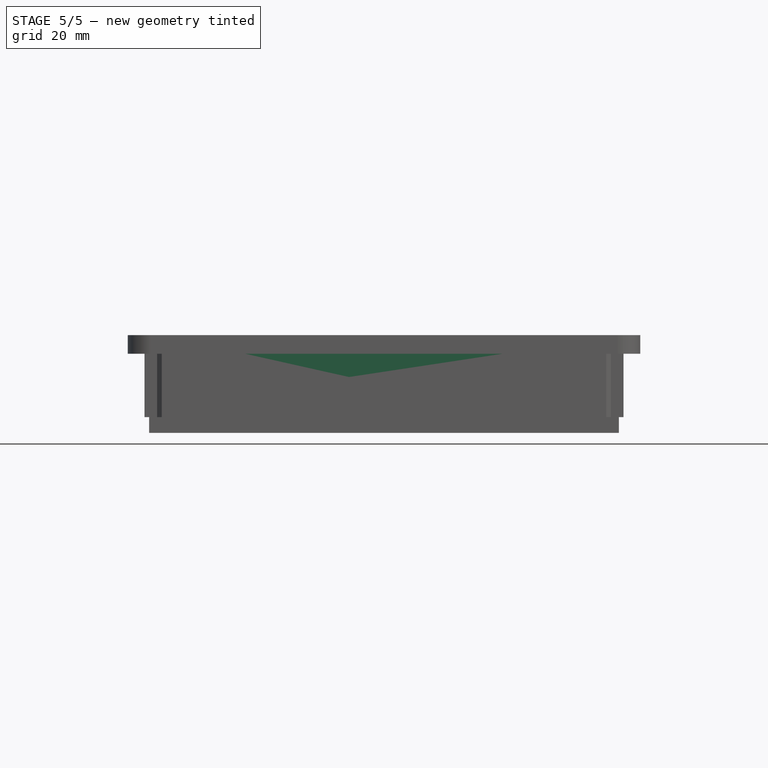
[diagram: stage 5 of 5 — front view after this stage's code; geometry added in this stage tinted green]
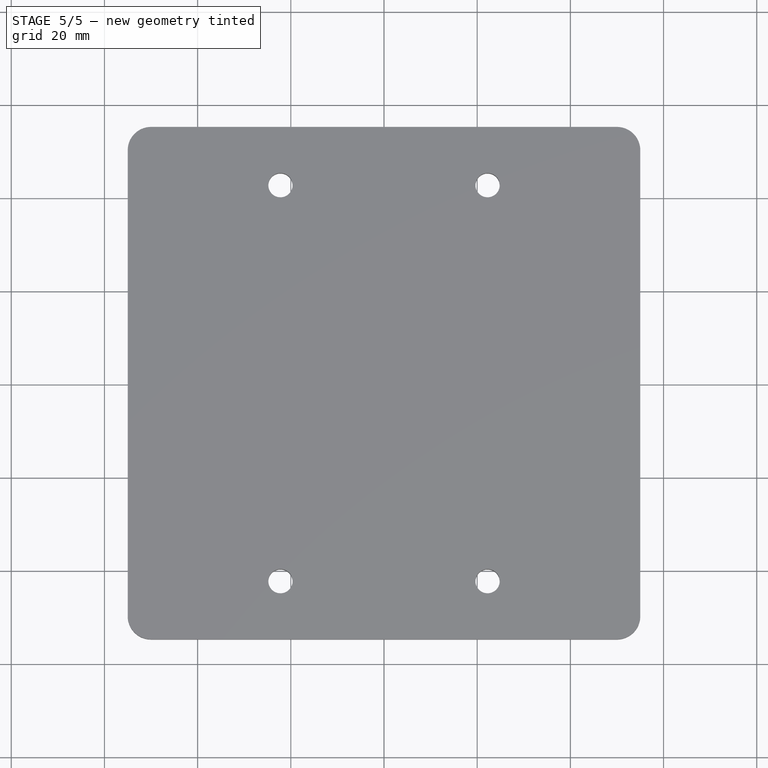
[diagram: stage 5 of 5 — top view after this stage's code; geometry added in this stage tinted green]
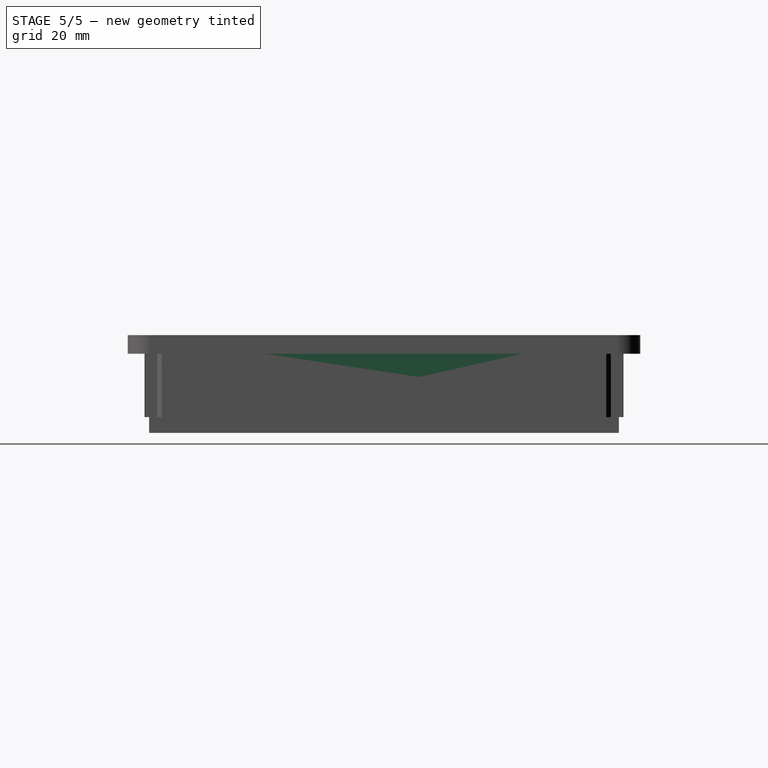
[diagram: stage 5 of 5 — right view after this stage's code; geometry added in this stage tinted green]
FEATURE [PartDesign::Pad] Pad003
  BaseFeature = -> Pad002
  Length = 5
  Length2 = 100
  Profile = -> Pad002 [Face143]
  Type = 0
FEATURE [PartDesign::Pad] Pad004
  BaseFeature = -> Pad003
  Length = 5
  Length2 = 100
  Profile = -> Pad003 [Face75]
  Type = 0
FEATURE [PartDesign::Pad] Pad005
  BaseFeature = -> Pad004
  Length = 5
  Length2 = 100
  Profile = -> Pad004 [Face128]
  Refine = true
  Type = 0
FEATURE [PartDesign::Body] Body
  Group = -> [Sketch,Pad,Sketch001,Pad001,Sketch002,Pocket,PolarPattern,Sketch003,Pocket001,PolarPattern001,Sketch004,Hole,Sketch005,Pocket002,PolarPattern002,Chamfer,Sketch006,Hole001,Chamfer001,Pad002,Pad003,Pad004,Pad005]
  Origin = -> Origin
  Tip = -> Pad005
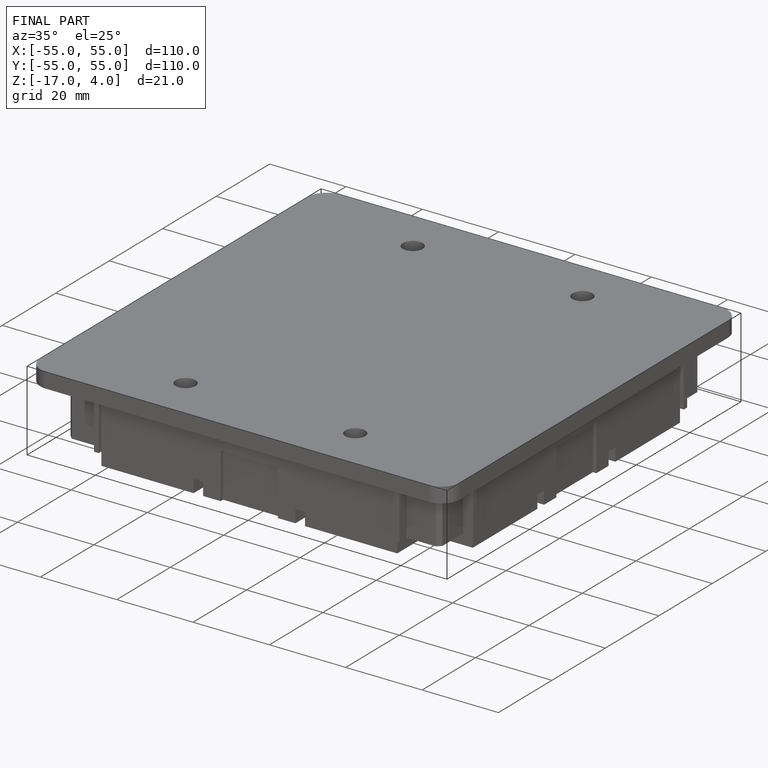
[diagram: finished part — iso view with bounding-box wireframe]
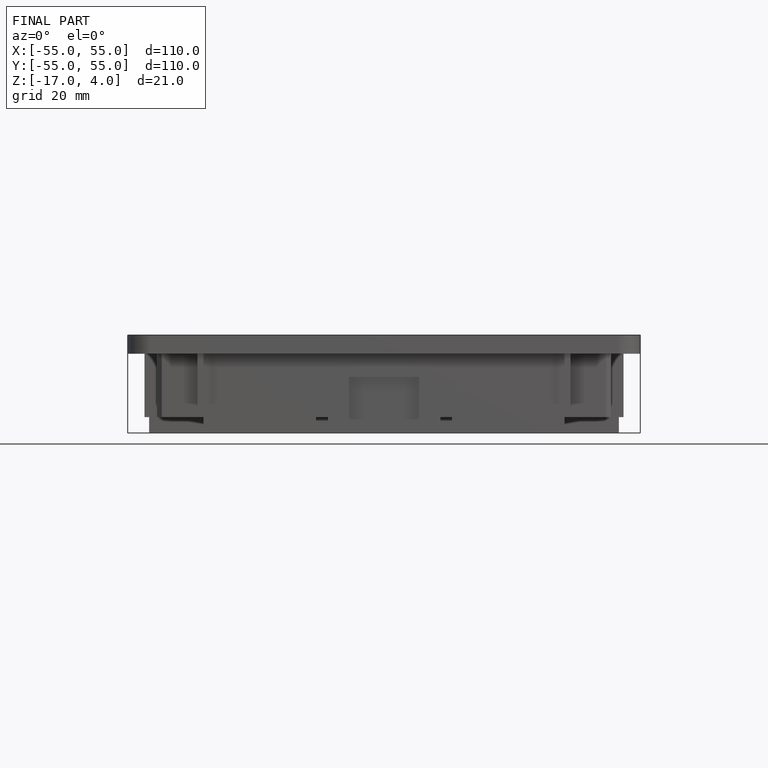
[diagram: finished part — front view with bounding-box wireframe]
